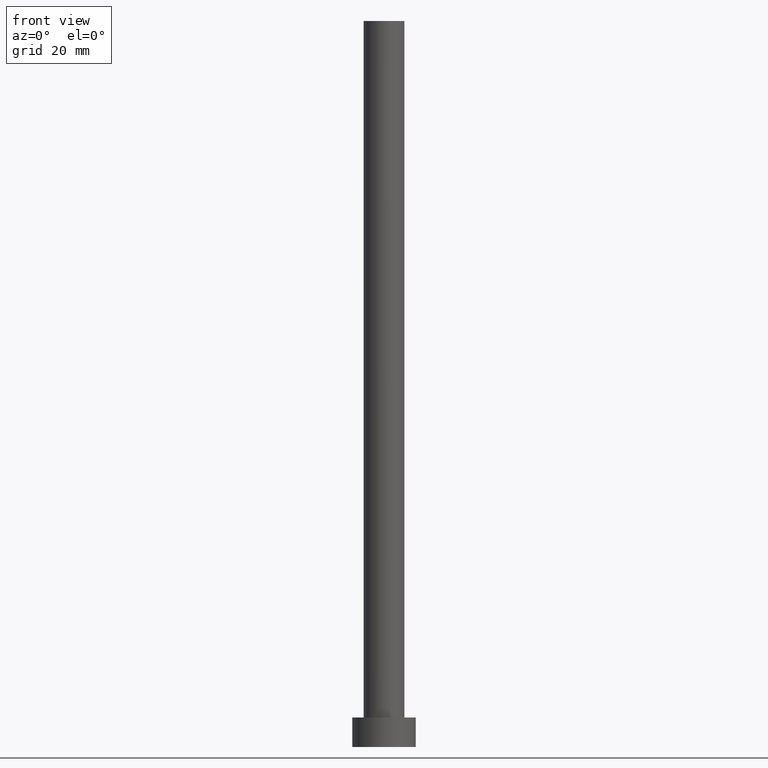
[diagram: clean part render]
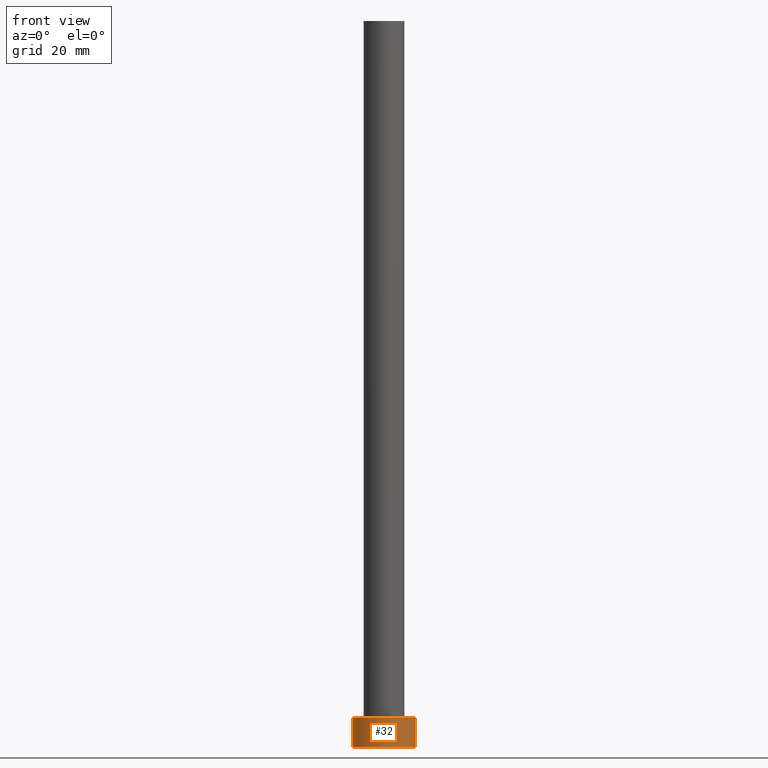
[diagram: same view with one face highlighted and labeled with its STEP entity id]
A machine part, front view. The second image highlights one B-rep face of the part: STEP entity #32.
In plain terms, the highlighted cylindrical surface (edge-blend (fillet) strip) has radius 7 mm, axis along (-0, -0, -1).
Its self-contained STEP definition (entity closure, byte-faithful):
#2 = CARTESIAN_POINT ( 'NONE',  ( -7.000000000000000000, 0.000000000000000000, 0.000000000000000000 ) ) ;
#7 = ORIENTED_EDGE ( 'NONE', *, *, #210, .T. ) ;
#21 = DIRECTION ( 'NONE',  ( 0.000000000000000000, 0.000000000000000000, 1.000000000000000000 ) ) ;
#23 = VERTEX_POINT ( 'NONE', #167 ) ;
#24 = AXIS2_PLACEMENT_3D ( 'NONE', #61, #21, #36 ) ;
#32 = ADVANCED_FACE ( 'NONE', ( #79 ), #248, .T. ) ;
#36 = DIRECTION ( 'NONE',  ( 1.000000000000000000, 0.000000000000000000, 0.000000000000000000 ) ) ;
#47 = CIRCLE ( 'NONE', #176, 7.000000000000000000 ) ;
#61 = CARTESIAN_POINT ( 'NONE',  ( 0.000000000000000000, 0.000000000000000000, 6.500000000000000000 ) ) ;
#65 = DIRECTION ( 'NONE',  ( 0.000000000000000000, 0.000000000000000000, 1.000000000000000000 ) ) ;
#69 = AXIS2_PLACEMENT_3D ( 'NONE', #223, #184, #111 ) ;
#72 = EDGE_LOOP ( 'NONE', ( #219, #200, #7, #151 ) ) ;
#79 = FACE_OUTER_BOUND ( 'NONE', #72, .T. ) ;
#83 = CARTESIAN_POINT ( 'NONE',  ( 7.000000000000000000, 8.572527594031471218E-16, 6.500000000000000000 ) ) ;
#85 = CIRCLE ( 'NONE', #24, 7.000000000000000000 ) ;
#86 = CARTESIAN_POINT ( 'NONE',  ( -7.000000000000000000, 0.000000000000000000, 6.500000000000000000 ) ) ;
#92 = VERTEX_POINT ( 'NONE', #226 ) ;
#102 = LINE ( 'NONE', #83, #125 ) ;
#111 = DIRECTION ( 'NONE',  ( -1.000000000000000000, 0.000000000000000000, 0.000000000000000000 ) ) ;
#115 = CARTESIAN_POINT ( 'NONE',  ( -7.000000000000000000, 0.000000000000000000, 6.500000000000000000 ) ) ;
#119 = EDGE_CURVE ( 'NONE', #127, #23, #85, .T. ) ;
#125 = VECTOR ( 'NONE', #158, 1000.000000000000000 ) ;
#127 = VERTEX_POINT ( 'NONE', #115 ) ;
#131 = VECTOR ( 'NONE', #196, 1000.000000000000000 ) ;
#132 = VERTEX_POINT ( 'NONE', #2 ) ;
#141 = CARTESIAN_POINT ( 'NONE',  ( 0.000000000000000000, 0.000000000000000000, 0.000000000000000000 ) ) ;
#143 = EDGE_CURVE ( 'NONE', #23, #92, #102, .T. ) ;
#151 = ORIENTED_EDGE ( 'NONE', *, *, #166, .T. ) ;
#158 = DIRECTION ( 'NONE',  ( -0.000000000000000000, -0.000000000000000000, -1.000000000000000000 ) ) ;
#163 = LINE ( 'NONE', #86, #131 ) ;
#166 = EDGE_CURVE ( 'NONE', #132, #92, #47, .T. ) ;
#167 = CARTESIAN_POINT ( 'NONE',  ( 7.000000000000000000, 8.572527594031471218E-16, 6.500000000000000000 ) ) ;
#176 = AXIS2_PLACEMENT_3D ( 'NONE', #141, #65, #240 ) ;
#184 = DIRECTION ( 'NONE',  ( -0.000000000000000000, -0.000000000000000000, -1.000000000000000000 ) ) ;
#196 = DIRECTION ( 'NONE',  ( -0.000000000000000000, -0.000000000000000000, -1.000000000000000000 ) ) ;
#200 = ORIENTED_EDGE ( 'NONE', *, *, #119, .F. ) ;
#210 = EDGE_CURVE ( 'NONE', #127, #132, #163, .T. ) ;
#219 = ORIENTED_EDGE ( 'NONE', *, *, #143, .F. ) ;
#223 = CARTESIAN_POINT ( 'NONE',  ( 0.000000000000000000, 0.000000000000000000, 6.500000000000000000 ) ) ;
#226 = CARTESIAN_POINT ( 'NONE',  ( 7.000000000000000000, 8.572527594031471218E-16, 0.000000000000000000 ) ) ;
#240 = DIRECTION ( 'NONE',  ( 1.000000000000000000, 0.000000000000000000, 0.000000000000000000 ) ) ;
#248 = CYLINDRICAL_SURFACE ( 'NONE', #69, 7.000000000000000000 ) ;